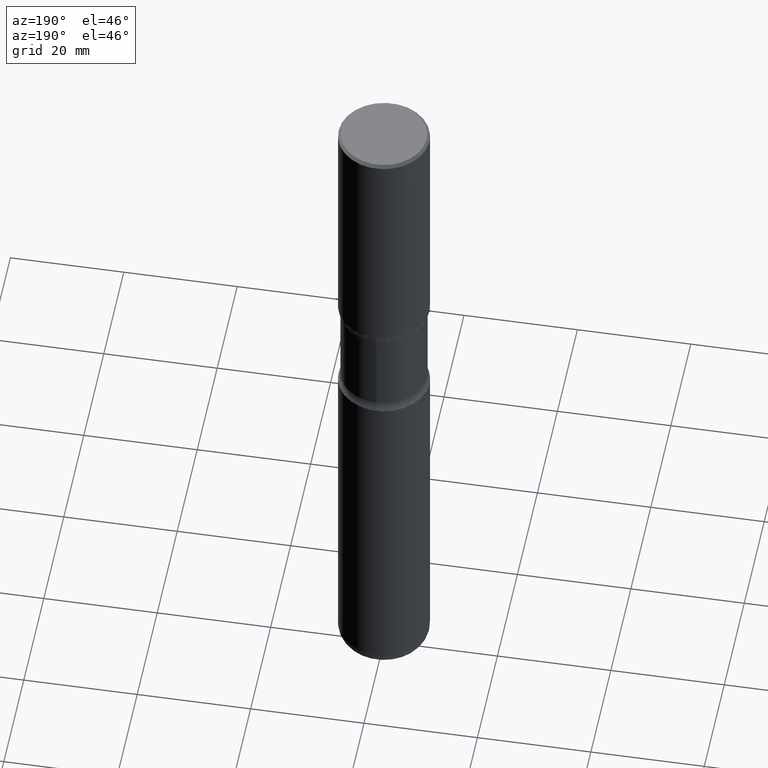
[diagram: clean part render]
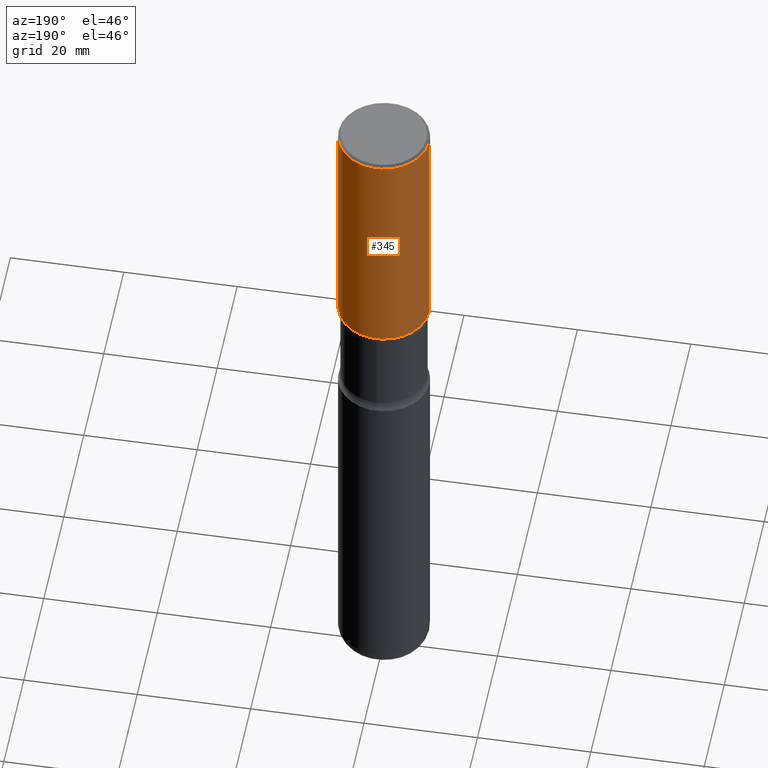
[diagram: same view with one face highlighted and labeled with its STEP entity id]
A machine part, auxiliary view. The second image highlights one B-rep face of the part: STEP entity #345.
In plain terms, the highlighted cylindrical surface (partial cylindrical patch) has radius 7.9997 mm, axis along (-0, 0, 1).
Its self-contained STEP definition (entity closure, byte-faithful):
#18 = VERTEX_POINT ( 'NONE', #352 ) ;
#42 = ORIENTED_EDGE ( 'NONE', *, *, #256, .F. ) ;
#60 = FACE_OUTER_BOUND ( 'NONE', #186, .T. ) ;
#67 = CARTESIAN_POINT ( 'NONE',  ( 0.3149500000000003408, -8.110362001998734458E-15, -1.692999999999998950 ) ) ;
#71 = DIRECTION ( 'NONE',  ( -2.445468806185136877E-29, 3.491481338843145188E-15, 1.000000000000000000 ) ) ;
#75 = VERTEX_POINT ( 'NONE', #466 ) ;
#78 = CARTESIAN_POINT ( 'NONE',  ( 4.890937612370289799E-31, -6.982962677686315028E-17, -0.02000000000000006981 ) ) ;
#81 = DIRECTION ( 'NONE',  ( -2.445468806185136597E-29, 3.491481338843145583E-15, 1.000000000000000000 ) ) ;
#105 = DIRECTION ( 'NONE',  ( 1.000000000000000000, -6.982962677686267499E-15, 4.876176775795936353E-29 ) ) ;
#120 = VERTEX_POINT ( 'NONE', #67 ) ;
#127 = AXIS2_PLACEMENT_3D ( 'NONE', #294, #81, #496 ) ;
#153 = EDGE_CURVE ( 'NONE', #18, #314, #248, .T. ) ;
#172 = DIRECTION ( 'NONE',  ( -2.445468806185136877E-29, 3.491481338843145188E-15, 1.000000000000000000 ) ) ;
#186 = EDGE_LOOP ( 'NONE', ( #514, #487, #213, #42 ) ) ;
#213 = ORIENTED_EDGE ( 'NONE', *, *, #465, .F. ) ;
#218 = CIRCLE ( 'NONE', #127, 0.3149500000000003408 ) ;
#245 = DIRECTION ( 'NONE',  ( -2.445468806185136597E-29, 3.491481338843145583E-15, 1.000000000000000000 ) ) ;
#248 = LINE ( 'NONE', #456, #353 ) ;
#256 = EDGE_CURVE ( 'NONE', #120, #75, #438, .T. ) ;
#288 = CIRCLE ( 'NONE', #520, 0.3149500000000001743 ) ;
#294 = CARTESIAN_POINT ( 'NONE',  ( 4.140178688871433779E-29, -5.911077906661441431E-15, -1.692999999999998950 ) ) ;
#313 = CARTESIAN_POINT ( 'NONE',  ( -0.3149500000000001743, 2.129454468560427756E-15, -0.02000000000000006981 ) ) ;
#314 = VERTEX_POINT ( 'NONE', #313 ) ;
#345 = ADVANCED_FACE ( 'NONE', ( #60 ), #488, .T. ) ;
#352 = CARTESIAN_POINT ( 'NONE',  ( -0.3149500000000003408, -7.525994204427138162E-16, -1.692999999999998950 ) ) ;
#353 = VECTOR ( 'NONE', #71, 39.37007874015748143 ) ;
#356 = EDGE_CURVE ( 'NONE', #120, #18, #218, .T. ) ;
#370 = VECTOR ( 'NONE', #172, 39.37007874015748143 ) ;
#404 = DIRECTION ( 'NONE',  ( -2.445468806185136597E-29, 3.491481338843145583E-15, 1.000000000000000000 ) ) ;
#438 = LINE ( 'NONE', #510, #370 ) ;
#450 = CARTESIAN_POINT ( 'NONE',  ( 0.000000000000000000, 0.000000000000000000, 0.000000000000000000 ) ) ;
#456 = CARTESIAN_POINT ( 'NONE',  ( -0.3149500000000002853, 2.237854346276437562E-15, -1.549218606675783797E-29 ) ) ;
#465 = EDGE_CURVE ( 'NONE', #75, #314, #288, .T. ) ;
#466 = CARTESIAN_POINT ( 'NONE',  ( 0.3149500000000001743, -2.230543471175008239E-15, -0.02000000000000006981 ) ) ;
#485 = AXIS2_PLACEMENT_3D ( 'NONE', #450, #404, #105 ) ;
#487 = ORIENTED_EDGE ( 'NONE', *, *, #153, .T. ) ;
#488 = CYLINDRICAL_SURFACE ( 'NONE', #485, 0.3149500000000002853 ) ;
#496 = DIRECTION ( 'NONE',  ( 1.000000000000000000, -6.982962677686268288E-15, 0.000000000000000000 ) ) ;
#510 = CARTESIAN_POINT ( 'NONE',  ( 0.3149500000000002853, -2.199284095337291843E-15, 1.535751875536931531E-29 ) ) ;
#514 = ORIENTED_EDGE ( 'NONE', *, *, #356, .T. ) ;
#520 = AXIS2_PLACEMENT_3D ( 'NONE', #78, #245, #526 ) ;
#526 = DIRECTION ( 'NONE',  ( 1.000000000000000000, -6.982962677686265922E-15, 0.000000000000000000 ) ) ;